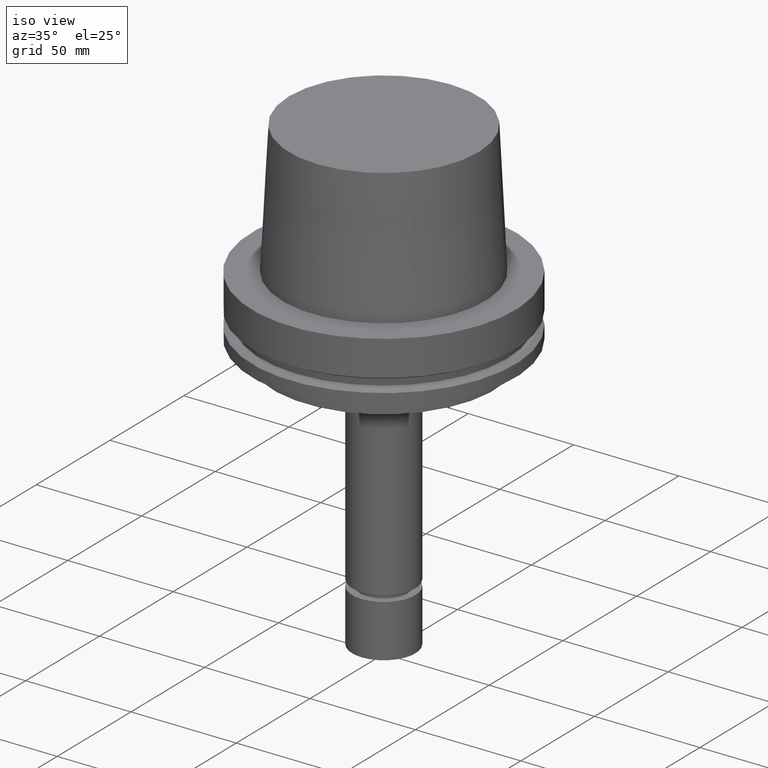
[diagram: clean part render]
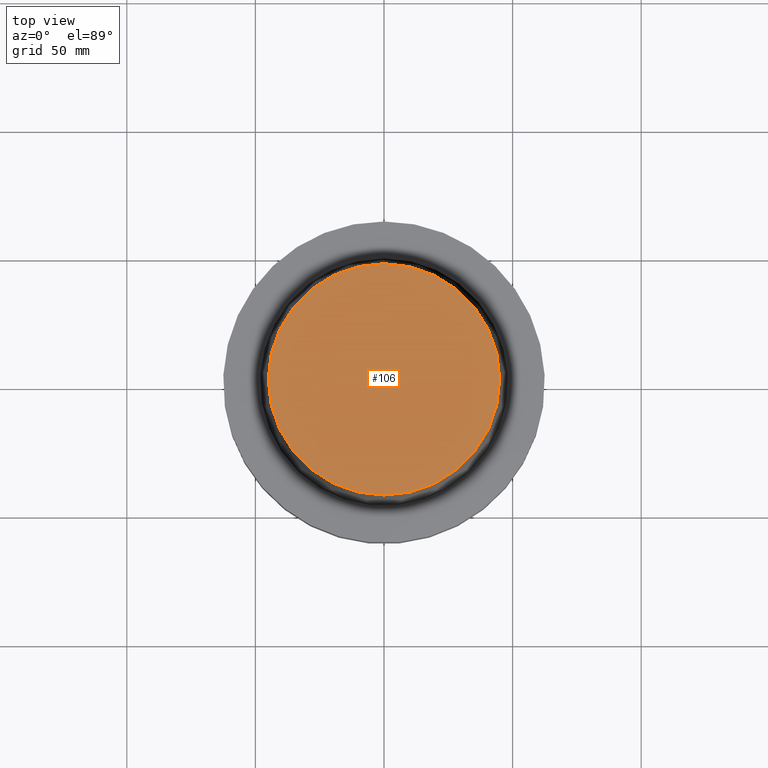
[diagram: tour spotlight — one face highlighted and labeled with its STEP entity id]
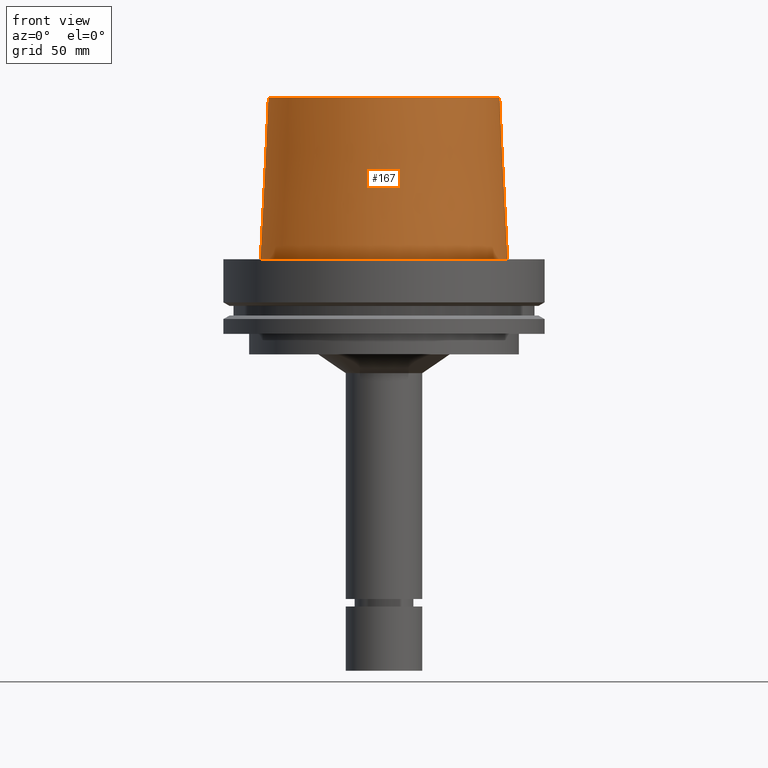
[diagram: tour spotlight — one face highlighted and labeled with its STEP entity id]
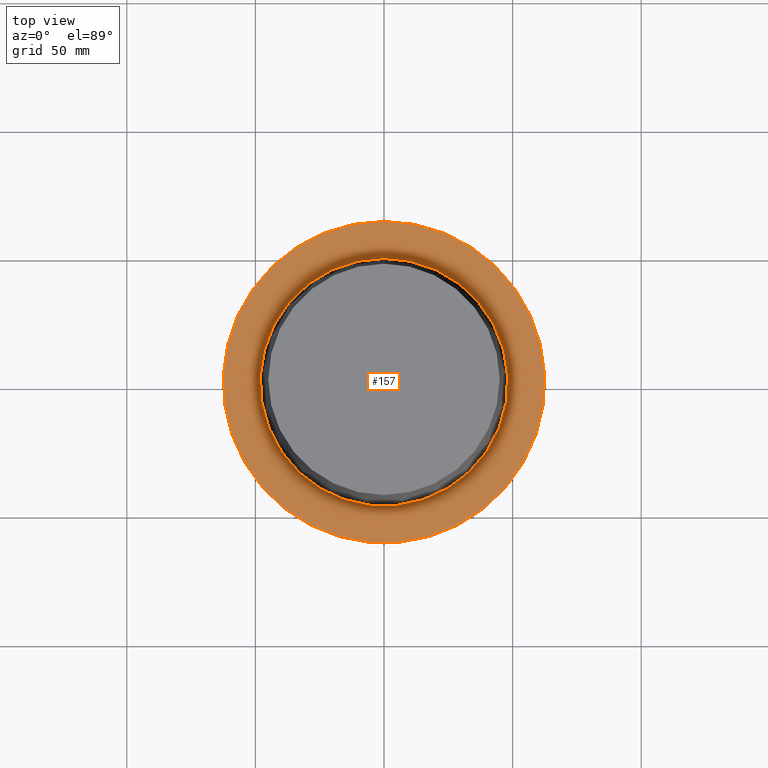
[diagram: tour spotlight — one face highlighted and labeled with its STEP entity id]
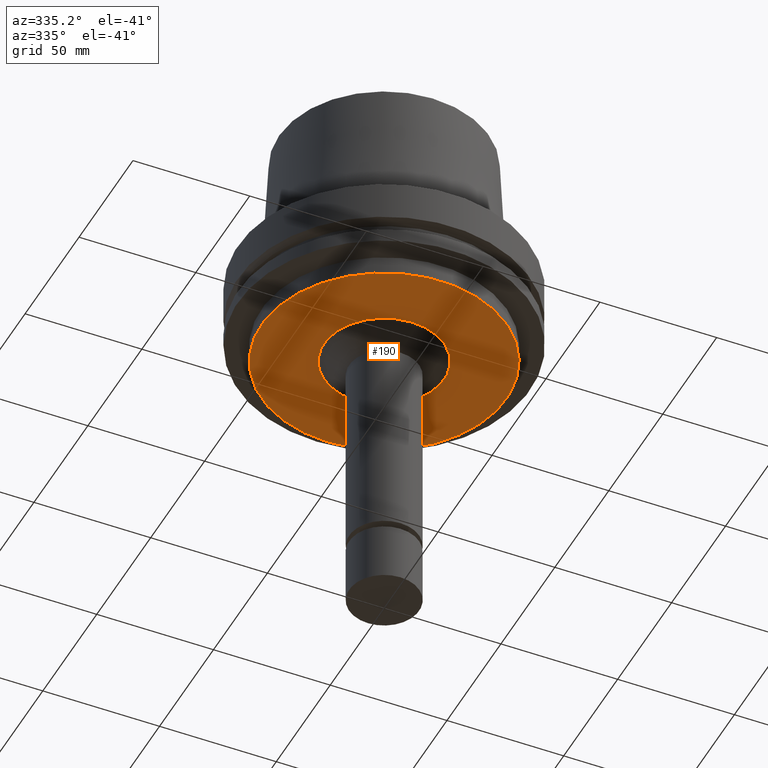
[diagram: tour spotlight — one face highlighted and labeled with its STEP entity id]
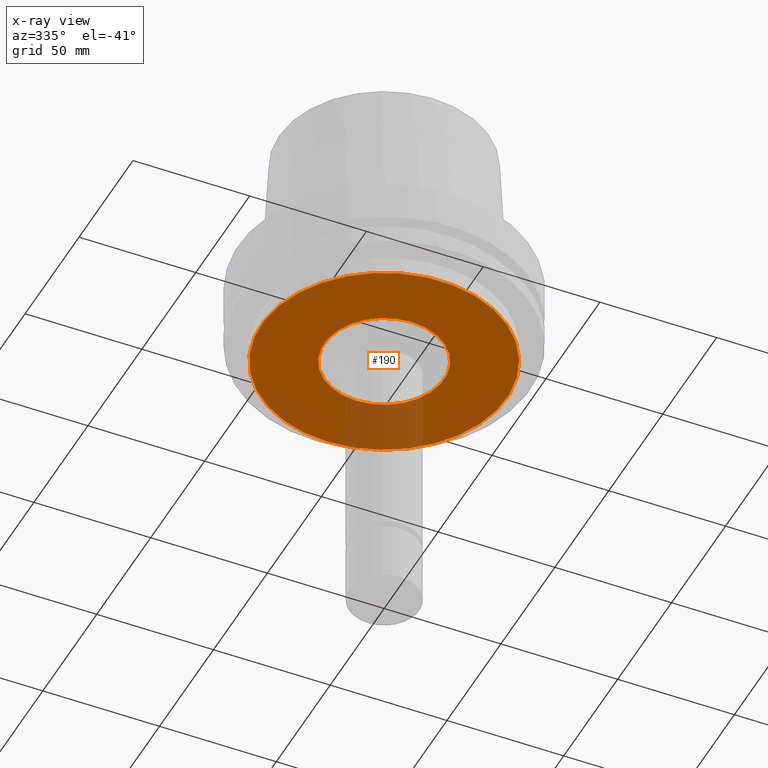
[diagram: x-ray of the same camera — body ghosted, this tour face saturated]
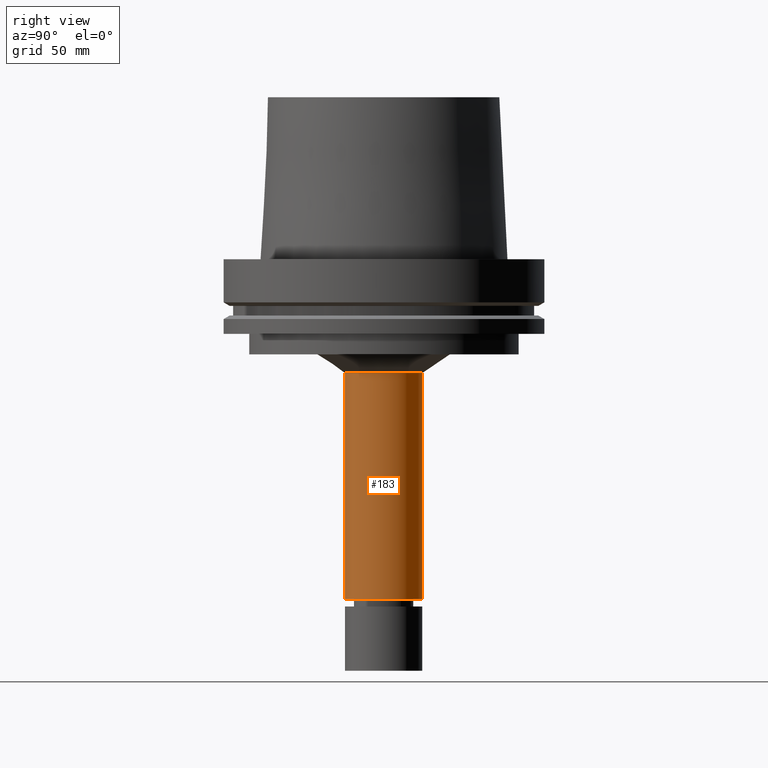
[diagram: tour spotlight — one face highlighted and labeled with its STEP entity id]
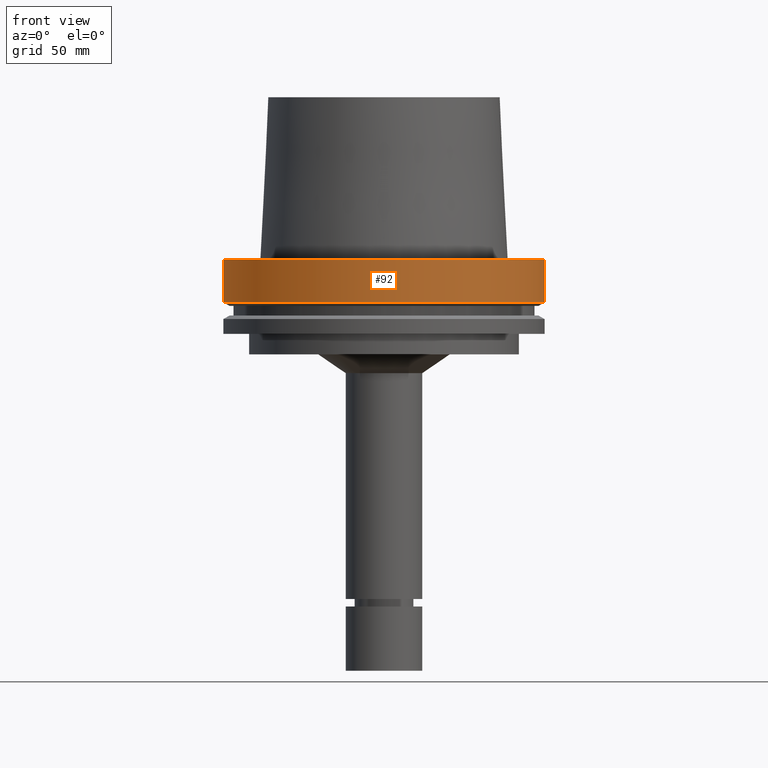
[diagram: tour spotlight — one face highlighted and labeled with its STEP entity id]
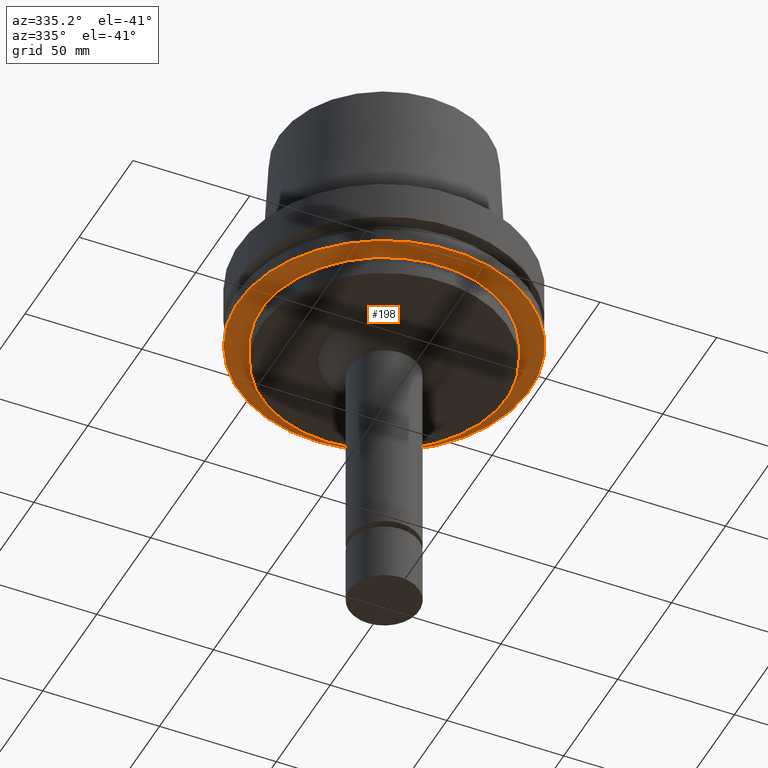
[diagram: tour spotlight — one face highlighted and labeled with its STEP entity id]
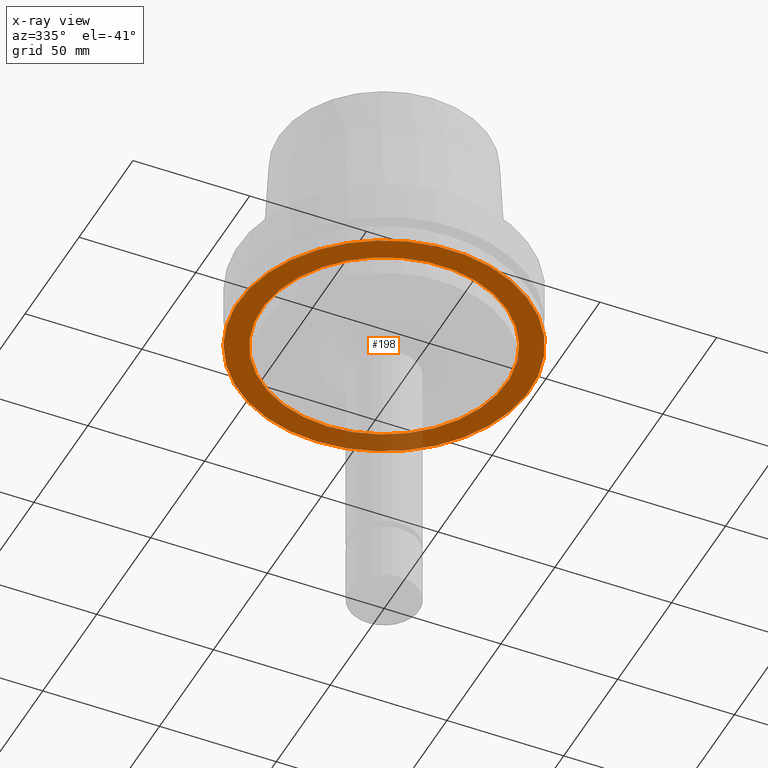
[diagram: x-ray of the same camera — body ghosted, this tour face saturated]
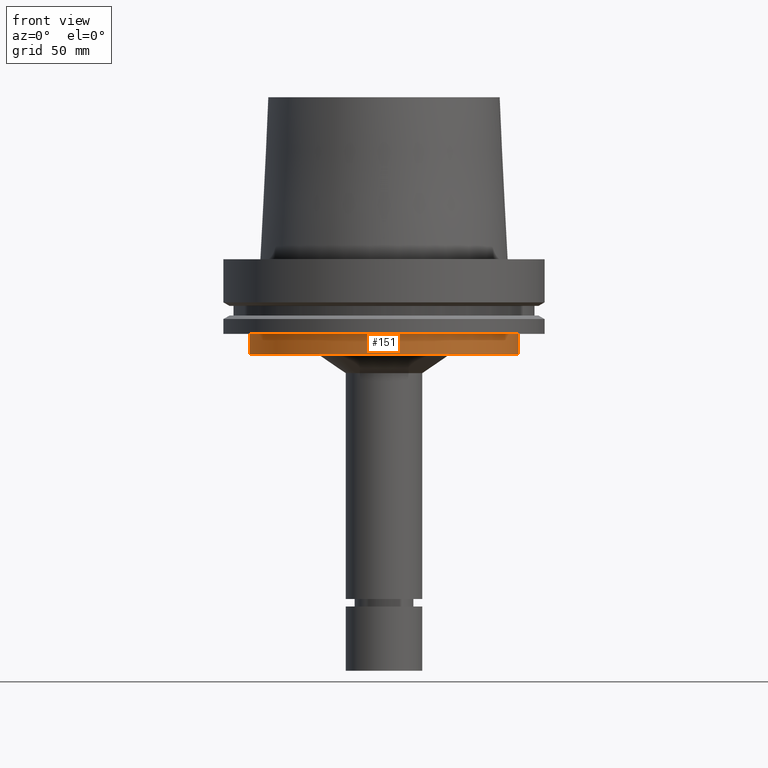
[diagram: tour spotlight — one face highlighted and labeled with its STEP entity id]
A machine part: a face-by-face anatomy tour. The part has 24 B-rep faces; the first image is the clean iso view, then the 8 largest visible faces are spotlighted one at a time (largest first), each with its STEP entity span.

Face 1 — top view, entity #106. In plain terms, the highlighted planar face has unit normal (-0, -0, 1).
Definition (entity closure, byte-faithful):
#106=ADVANCED_FACE('Unnamed[1]',(#259),#260,.T.);
#192=EDGE_CURVE('Unnamed[1]',#392,#392,#393,.T.);
#259=FACE_OUTER_BOUND('',#467,.T.);
#260=PLANE('',#468);
#392=VERTEX_POINT('',#634);
#393=CIRCLE('',#635,44.977939879759);
#467=EDGE_LOOP('',(#695));
#468=AXIS2_PLACEMENT_3D('',#696,#697,#698);
#634=CARTESIAN_POINT('',(-3.85763741731416E-015,44.9779398797591,62.9999999999999));
#635=AXIS2_PLACEMENT_3D('',#842,#843,#844);
#695=ORIENTED_EDGE('',*,*,#192,.F.);
#696=CARTESIAN_POINT('',(-3.85763741731416E-015,22.4889699398796,62.9999999999999));
#697=DIRECTION('',(-6.12323399573677E-017,-1.22464679914735E-016,1.0));
#698=DIRECTION('',(1.23259516440783E-032,-1.0,-1.22464679914735E-016));
#842=CARTESIAN_POINT('',(-3.85763741731416E-015,4.90847251653719E-014,62.9999999999999));
#843=DIRECTION('',(6.12323399573677E-017,-7.06999605799676E-016,-1.0));
#844=DIRECTION('',(3.84640874812908E-032,1.0,-7.06999605799676E-016));

Face 2 — front view, entity #167. In plain terms, the highlighted conical surface has half-angle 2.868 deg.
Definition (entity closure, byte-faithful):
#97=EDGE_CURVE('Unnamed[1]',#246,#246,#247,.T.);
#167=ADVANCED_FACE('Unnamed[1]',(#354,#355),#356,.T.);
#192=EDGE_CURVE('Unnamed[1]',#392,#392,#393,.T.);
#246=VERTEX_POINT('',#451);
#247=CIRCLE('',#452,48.1342525050097);
#354=FACE_BOUND('',#586,.T.);
#355=FACE_BOUND('',#587,.T.);
#356=CONICAL_SURFACE('',#588,46.5560961923844,0.0500583457465964);
#392=VERTEX_POINT('',#634);
#393=CIRCLE('',#635,44.977939879759);
#451=CARTESIAN_POINT('',(3.88158335277612E-029,48.1342525050097,-6.37705254174039E-013));
#452=AXIS2_PLACEMENT_3D('',#680,#681,#682);
#586=EDGE_LOOP('',(#803));
#587=EDGE_LOOP('',(#804));
#588=AXIS2_PLACEMENT_3D('',#805,#806,#807);
#634=CARTESIAN_POINT('',(-3.85763741731416E-015,44.9779398797591,62.9999999999999));
#635=AXIS2_PLACEMENT_3D('',#842,#843,#844);
#680=CARTESIAN_POINT('',(3.82872110282645E-029,4.54374999999972E-015,-6.25277607468888E-013));
#681=DIRECTION('',(6.12323399573677E-017,-7.06999605799611E-016,-1.0));
#682=DIRECTION('',(3.84640874812681E-032,1.0,-7.06999605799611E-016));
#803=ORIENTED_EDGE('',*,*,#97,.F.);
#804=ORIENTED_EDGE('',*,*,#192,.T.);
#805=CARTESIAN_POINT('',(-1.92881870865706E-015,2.68142375826858E-014,31.4999999999997));
#806=DIRECTION('',(6.12323399573677E-017,-7.06999605799504E-016,-1.0));
#807=DIRECTION('',(3.8464087481279E-032,1.0,-7.06999605799504E-016));
#842=CARTESIAN_POINT('',(-3.85763741731416E-015,4.90847251653719E-014,62.9999999999999));
#843=DIRECTION('',(6.12323399573677E-017,-7.06999605799676E-016,-1.0));
#844=DIRECTION('',(3.84640874812908E-032,1.0,-7.06999605799676E-016));

Face 3 — top view, entity #157. In plain terms, the highlighted planar face has unit normal (-0, -0, 1).
Definition (entity closure, byte-faithful):
#97=EDGE_CURVE('Unnamed[1]',#246,#246,#247,.T.);
#157=ADVANCED_FACE('Unnamed[1]',(#338,#339),#340,.T.);
#169=EDGE_CURVE('Unnamed[1]',#358,#358,#359,.T.);
#246=VERTEX_POINT('',#451);
#247=CIRCLE('',#452,48.1342525050097);
#338=FACE_OUTER_BOUND('',#566,.T.);
#339=FACE_BOUND('',#567,.T.);
#340=PLANE('',#568);
#358=VERTEX_POINT('',#591);
#359=CIRCLE('',#592,62.5000000000002);
#451=CARTESIAN_POINT('',(3.88158335277612E-029,48.1342525050097,-6.37705254174039E-013));
#452=AXIS2_PLACEMENT_3D('',#680,#681,#682);
#566=EDGE_LOOP('',(#785));
#567=EDGE_LOOP('',(#786));
#568=AXIS2_PLACEMENT_3D('',#787,#788,#789);
#591=CARTESIAN_POINT('',(-5.58935713239973E-030,62.5000000000002,8.63540424946709E-014));
#592=AXIS2_PLACEMENT_3D('',#808,#809,#810);
#680=CARTESIAN_POINT('',(3.82872110282645E-029,4.54374999999972E-015,-6.25277607468888E-013));
#681=DIRECTION('',(6.12323399573677E-017,-7.06999605799611E-016,-1.0));
#682=DIRECTION('',(3.84640874812681E-032,1.0,-7.06999605799611E-016));
#785=ORIENTED_EDGE('',*,*,#169,.F.);
#786=ORIENTED_EDGE('',*,*,#97,.T.);
#787=CARTESIAN_POINT('',(1.66132381976807E-029,55.317126252505,-2.75675605839684E-013));
#788=DIRECTION('',(-6.12323399573677E-017,-5.04017836121091E-014,1.0));
#789=DIRECTION('',(3.09104630132512E-030,-1.0,-5.04017836121091E-014));
#808=CARTESIAN_POINT('',(-8.7016388700601E-030,4.54375000000025E-015,1.4210854715202E-013));
#809=DIRECTION('',(6.12323399573677E-017,-7.06999605799596E-016,-1.0));
#810=DIRECTION('',(3.84640874812856E-032,1.0,-7.06999605799596E-016));

Face 4 — auxiliary view, entity #190. An x-ray twin of the same camera follows (body ghosted, this face saturated) — the face is partly hidden behind the body. In plain terms, the highlighted planar face has unit normal (0, 0, -1).
Definition (entity closure, byte-faithful):
#126=EDGE_CURVE('Unnamed[1]',#290,#290,#291,.T.);
#140=EDGE_CURVE('Unnamed[1]',#312,#312,#313,.T.);
#190=ADVANCED_FACE('Unnamed[1]',(#388,#389),#390,.T.);
#290=VERTEX_POINT('',#506);
#291=CIRCLE('',#507,52.4999999999999);
#312=VERTEX_POINT('',#534);
#313=CIRCLE('',#535,25.6930681553449);
#388=FACE_BOUND('',#629,.T.);
#389=FACE_OUTER_BOUND('',#630,.T.);
#390=PLANE('',#631);
#506=CARTESIAN_POINT('',(2.26559657842261E-015,52.4999999999999,-37.0000000000001));
#507=AXIS2_PLACEMENT_3D('',#731,#732,#733);
#534=CARTESIAN_POINT('',(2.26559657842261E-015,25.6930681553449,-37.0000000000001));
#535=AXIS2_PLACEMENT_3D('',#755,#756,#757);
#629=EDGE_LOOP('',(#837));
#630=EDGE_LOOP('',(#838));
#631=AXIS2_PLACEMENT_3D('',#839,#840,#841);
#731=CARTESIAN_POINT('',(2.26559657842261E-015,-2.16152354145833E-014,-37.0000000000001));
#732=DIRECTION('',(6.12323399573677E-017,-7.06999605799462E-016,-1.0));
#733=DIRECTION('',(3.84640874812836E-032,1.0,-7.06999605799462E-016));
#755=CARTESIAN_POINT('',(2.26559657842261E-015,-2.16152354145834E-014,-37.0000000000001));
#756=DIRECTION('',(6.12323399573677E-017,-7.06999605799675E-016,-1.0));
#757=DIRECTION('',(3.84640874812948E-032,1.0,-7.06999605799675E-016));
#837=ORIENTED_EDGE('',*,*,#140,.F.);
#838=ORIENTED_EDGE('',*,*,#126,.T.);
#839=CARTESIAN_POINT('',(2.26559657842261E-015,39.0965340776724,-37.0000000000001));
#840=DIRECTION('',(6.12323399573677E-017,1.22464679914735E-016,-1.0));
#841=DIRECTION('',(-1.23259516440783E-032,1.0,1.22464679914735E-016));

Face 5 — right view, entity #183. In plain terms, the highlighted cylindrical surface (bore or boss wall) has radius 15 mm, axis along (0, -0, -1).
Definition (entity closure, byte-faithful):
#178=EDGE_CURVE('Unnamed[1]',#370,#370,#371,.T.);
#183=ADVANCED_FACE('Unnamed[1]',(#377,#378),#379,.T.);
#187=EDGE_CURVE('Unnamed[1]',#384,#384,#385,.T.);
#370=VERTEX_POINT('',#606);
#371=CIRCLE('',#607,15.0000000000001);
#377=FACE_BOUND('',#615,.T.);
#378=FACE_BOUND('',#616,.T.);
#379=CYLINDRICAL_SURFACE('',#617,15.0000000000001);
#384=VERTEX_POINT('',#624);
#385=CIRCLE('',#625,15.0000000000001);
#606=CARTESIAN_POINT('',(8.08879210836823E-015,15.0,-132.099999999999));
#607=AXIS2_PLACEMENT_3D('',#818,#819,#820);
#615=EDGE_LOOP('',(#825));
#616=EDGE_LOOP('',(#826));
#617=AXIS2_PLACEMENT_3D('',#827,#828,#829);
#624=CARTESIAN_POINT('',(2.71042752545055E-015,15.0,-44.264640667622));
#625=AXIS2_PLACEMENT_3D('',#833,#834,#835);
#818=CARTESIAN_POINT('',(8.08879210836822E-015,-8.88508979261202E-014,-132.099999999999));
#819=DIRECTION('',(6.12323399573676E-017,-7.06999605799455E-016,-1.0));
#820=DIRECTION('',(3.8464087481249E-032,1.0,-7.06999605799455E-016));
#825=ORIENTED_EDGE('',*,*,#178,.F.);
#826=ORIENTED_EDGE('',*,*,#187,.T.);
#827=CARTESIAN_POINT('',(5.39960981690939E-015,-5.78011157144938E-014,-88.1823203338107));
#828=DIRECTION('',(6.12323399573676E-017,-7.06999605799457E-016,-1.0));
#829=DIRECTION('',(3.8464087481273E-032,1.0,-7.06999605799457E-016));
#833=CARTESIAN_POINT('',(2.71042752545055E-015,-2.67513335028674E-014,-44.264640667622));
#834=DIRECTION('',(6.12323399573677E-017,-7.06999605799458E-016,-1.0));
#835=DIRECTION('',(3.84640874812492E-032,1.0,-7.06999605799458E-016));

Face 6 — front view, entity #92. In plain terms, the highlighted cylindrical surface (bore or boss wall) has radius 62.5 mm, axis along (0, -0, -1).
Definition (entity closure, byte-faithful):
#92=ADVANCED_FACE('Unnamed[1]',(#237,#238),#239,.T.);
#169=EDGE_CURVE('Unnamed[1]',#358,#358,#359,.T.);
#185=EDGE_CURVE('Unnamed[1]',#381,#381,#382,.T.);
#237=FACE_BOUND('',#440,.T.);
#238=FACE_BOUND('',#441,.T.);
#239=CYLINDRICAL_SURFACE('',#442,62.5000000000001);
#358=VERTEX_POINT('',#591);
#359=CIRCLE('',#592,62.5000000000002);
#381=VERTEX_POINT('',#620);
#382=CIRCLE('',#621,62.5);
#440=EDGE_LOOP('',(#669));
#441=EDGE_LOOP('',(#670));
#442=AXIS2_PLACEMENT_3D('',#671,#672,#673);
#591=CARTESIAN_POINT('',(-5.58935713239973E-030,62.5000000000002,8.63540424946709E-014));
#592=AXIS2_PLACEMENT_3D('',#808,#809,#810);
#620=CARTESIAN_POINT('',(1.02578894188644E-015,62.5,-16.7524047358084));
#621=AXIS2_PLACEMENT_3D('',#830,#831,#832);
#669=ORIENTED_EDGE('',*,*,#185,.F.);
#670=ORIENTED_EDGE('',*,*,#169,.T.);
#671=CARTESIAN_POINT('',(5.12894470943213E-016,-1.37822177220533E-015,-8.37620236790411));
#672=DIRECTION('',(6.12323399573677E-017,-7.06999605799598E-016,-1.0));
#673=DIRECTION('',(3.84640874812856E-032,1.0,-7.06999605799598E-016));
#808=CARTESIAN_POINT('',(-8.7016388700601E-030,4.54375000000025E-015,1.4210854715202E-013));
#809=DIRECTION('',(6.12323399573677E-017,-7.06999605799596E-016,-1.0));
#810=DIRECTION('',(3.84640874812856E-032,1.0,-7.06999605799596E-016));
#830=CARTESIAN_POINT('',(1.02578894188643E-015,-7.3001935444109E-015,-16.7524047358083));
#831=DIRECTION('',(6.12323399573677E-017,-7.06999605799599E-016,-1.0));
#832=DIRECTION('',(3.84640874812857E-032,1.0,-7.06999605799599E-016));

Face 7 — auxiliary view, entity #198. An x-ray twin of the same camera follows (body ghosted, this face saturated) — the face is partly hidden behind the body. In plain terms, the highlighted planar face has unit normal (0, 0, -1).
Definition (entity closure, byte-faithful):
#81=EDGE_CURVE('Unnamed[1]',#222,#222,#223,.T.);
#86=EDGE_CURVE('Unnamed[1]',#228,#228,#229,.T.);
#198=ADVANCED_FACE('Unnamed[1]',(#401,#402),#403,.T.);
#222=VERTEX_POINT('',#422);
#223=CIRCLE('',#423,62.5);
#228=VERTEX_POINT('',#429);
#229=CIRCLE('',#430,52.5);
#401=FACE_BOUND('',#645,.T.);
#402=FACE_OUTER_BOUND('',#646,.T.);
#403=PLANE('',#647);
#422=CARTESIAN_POINT('',(1.77573785876366E-015,62.5,-29.0));
#423=AXIS2_PLACEMENT_3D('',#655,#656,#657);
#429=CARTESIAN_POINT('',(1.77573785876367E-015,52.5,-29.0000000000001));
#430=AXIS2_PLACEMENT_3D('',#659,#660,#661);
#645=EDGE_LOOP('',(#852));
#646=EDGE_LOOP('',(#853));
#647=AXIS2_PLACEMENT_3D('',#854,#855,#856);
#655=CARTESIAN_POINT('',(1.77573785876366E-015,-1.59592385681868E-014,-29.0));
#656=DIRECTION('',(6.12323399573676E-017,-7.06999605799599E-016,-1.0));
#657=DIRECTION('',(3.84640874812857E-032,1.0,-7.06999605799599E-016));
#659=CARTESIAN_POINT('',(1.77573785876367E-015,-1.59592385681869E-014,-29.0000000000001));
#660=DIRECTION('',(6.12323399573677E-017,-7.06999605799461E-016,-1.0));
#661=DIRECTION('',(3.84640874812835E-032,1.0,-7.06999605799461E-016));
#852=ORIENTED_EDGE('',*,*,#86,.F.);
#853=ORIENTED_EDGE('',*,*,#81,.T.);
#854=CARTESIAN_POINT('',(1.77573785876367E-015,57.5,-29.0000000000001));
#855=DIRECTION('',(6.12323399573677E-017,9.00424887691601E-015,-1.0));
#856=DIRECTION('',(-5.56178381022836E-031,1.0,9.00424887691601E-015));

Face 8 — front view, entity #151. In plain terms, the highlighted cylindrical surface (bore or boss wall) has radius 52.5 mm, axis along (0, -0, -1).
Definition (entity closure, byte-faithful):
#86=EDGE_CURVE('Unnamed[1]',#228,#228,#229,.T.);
#126=EDGE_CURVE('Unnamed[1]',#290,#290,#291,.T.);
#151=ADVANCED_FACE('Unnamed[1]',(#328,#329),#330,.T.);
#228=VERTEX_POINT('',#429);
#229=CIRCLE('',#430,52.5);
#290=VERTEX_POINT('',#506);
#291=CIRCLE('',#507,52.4999999999999);
#328=FACE_BOUND('',#554,.T.);
#329=FACE_BOUND('',#555,.T.);
#330=CYLINDRICAL_SURFACE('',#556,52.5);
#429=CARTESIAN_POINT('',(1.77573785876367E-015,52.5,-29.0000000000001));
#430=AXIS2_PLACEMENT_3D('',#659,#660,#661);
#506=CARTESIAN_POINT('',(2.26559657842261E-015,52.4999999999999,-37.0000000000001));
#507=AXIS2_PLACEMENT_3D('',#731,#732,#733);
#554=EDGE_LOOP('',(#773));
#555=EDGE_LOOP('',(#774));
#556=AXIS2_PLACEMENT_3D('',#775,#776,#777);
#659=CARTESIAN_POINT('',(1.77573785876367E-015,-1.59592385681869E-014,-29.0000000000001));
#660=DIRECTION('',(6.12323399573677E-017,-7.06999605799461E-016,-1.0));
#661=DIRECTION('',(3.84640874812835E-032,1.0,-7.06999605799461E-016));
#731=CARTESIAN_POINT('',(2.26559657842261E-015,-2.16152354145833E-014,-37.0000000000001));
#732=DIRECTION('',(6.12323399573677E-017,-7.06999605799462E-016,-1.0));
#733=DIRECTION('',(3.84640874812836E-032,1.0,-7.06999605799462E-016));
#773=ORIENTED_EDGE('',*,*,#126,.F.);
#774=ORIENTED_EDGE('',*,*,#86,.T.);
#775=CARTESIAN_POINT('',(2.02066721859314E-015,-1.87872369913851E-014,-33.0000000000001));
#776=DIRECTION('',(6.12323399573677E-017,-7.06999605799462E-016,-1.0));
#777=DIRECTION('',(3.84640874812835E-032,1.0,-7.06999605799462E-016));